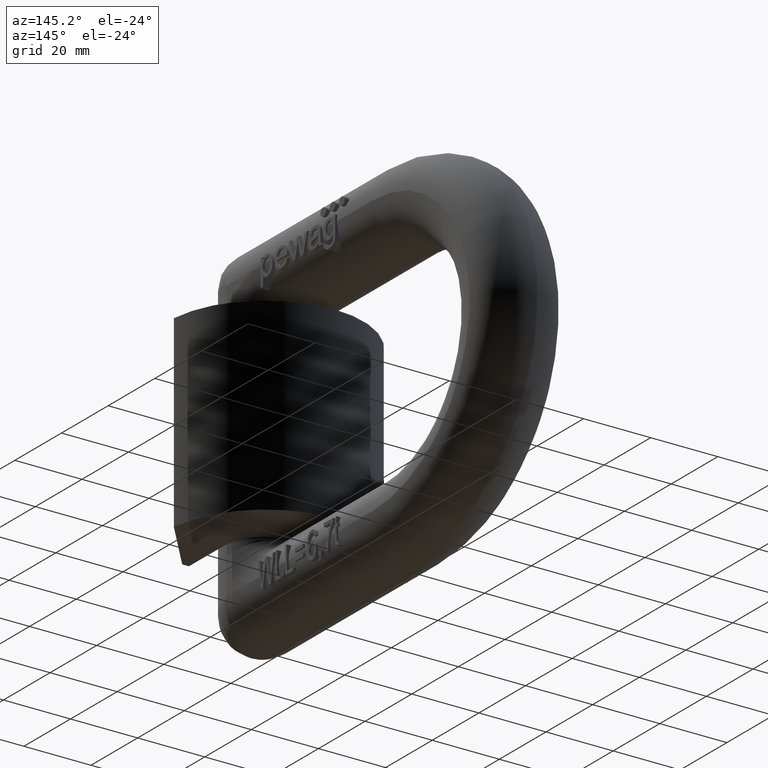
[diagram: clean part render]
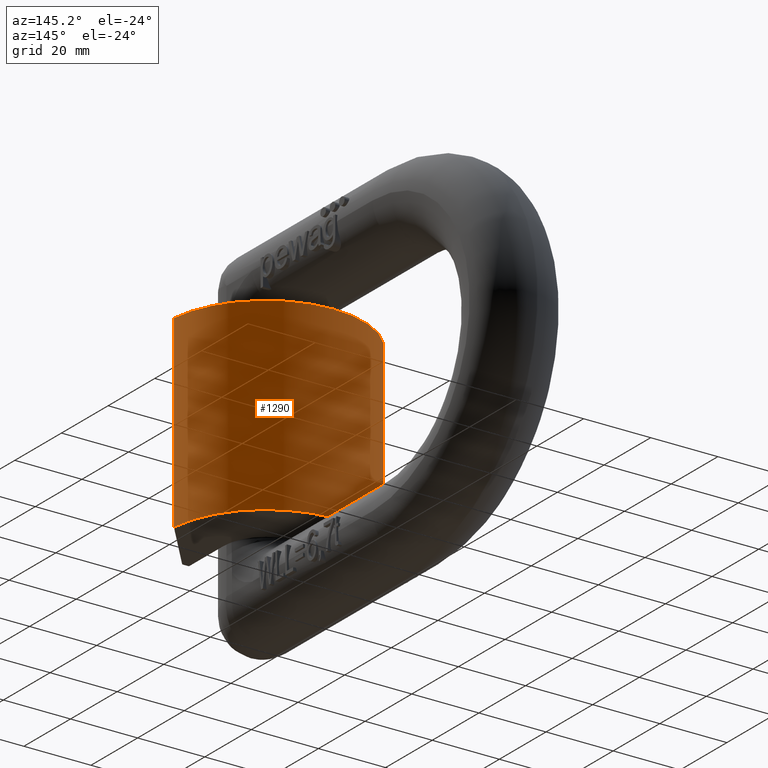
[diagram: same view with one face highlighted and labeled with its STEP entity id]
A machine part, auxiliary view. The second image highlights one B-rep face of the part: STEP entity #1290.
In plain terms, the highlighted cylindrical surface (partial cylindrical patch) has radius 29 mm, axis along (0, 0, -1).
Its self-contained STEP definition (entity closure, byte-faithful):
#1290=ADVANCED_FACE('',(#1808),#1750,.T.);
#1750=CYLINDRICAL_SURFACE('',#8677,29.);
#1808=FACE_OUTER_BOUND('',#2246,.T.);
#2246=EDGE_LOOP('',(#2840,#2841,#2842,#2843));
#2734=CIRCLE('',#8675,29.);
#2735=CIRCLE('',#8676,29.);
#2840=ORIENTED_EDGE('',*,*,#6196,.F.);
#2841=ORIENTED_EDGE('',*,*,#6197,.F.);
#2842=ORIENTED_EDGE('',*,*,#6198,.F.);
#2843=ORIENTED_EDGE('',*,*,#6199,.T.);
#5364=VERTEX_POINT('',#10773);
#5365=VERTEX_POINT('',#10774);
#5366=VERTEX_POINT('',#10776);
#5367=VERTEX_POINT('',#10778);
#6196=EDGE_CURVE('',#5364,#5365,#7458,.T.);
#6197=EDGE_CURVE('',#5366,#5364,#2734,.T.);
#6198=EDGE_CURVE('',#5367,#5366,#7459,.T.);
#6199=EDGE_CURVE('',#5367,#5365,#2735,.T.);
#7458=LINE('',#10772,#7984);
#7459=LINE('',#10777,#7985);
#7984=VECTOR('',#9145,1.);
#7985=VECTOR('',#9148,1.);
#8675=AXIS2_PLACEMENT_3D('',#10775,#9146,#9147);
#8676=AXIS2_PLACEMENT_3D('',#10779,#9149,#9150);
#8677=AXIS2_PLACEMENT_3D('',#10780,#9151,#9152);
#9145=DIRECTION('',(0.,0.,-1.));
#9146=DIRECTION('',(0.,0.,1.));
#9147=DIRECTION('',(1.,0.,0.));
#9148=DIRECTION('',(0.,0.,1.));
#9149=DIRECTION('',(0.,0.,1.));
#9150=DIRECTION('',(1.,0.,0.));
#9151=DIRECTION('',(0.,0.,-1.));
#9152=DIRECTION('',(-1.,0.,0.));
#10772=CARTESIAN_POINT('',(-28.9177633537387,17.1824212739912,28.));
#10773=CARTESIAN_POINT('',(-28.9177633537387,17.1824212739912,28.));
#10774=CARTESIAN_POINT('',(-28.9177633537387,17.1824212739912,-28.));
#10775=CARTESIAN_POINT('',(0.,15.,28.));
#10776=CARTESIAN_POINT('',(28.9177633537387,17.1824212739912,28.));
#10777=CARTESIAN_POINT('',(28.9177633537387,17.1824212739912,28.));
#10778=CARTESIAN_POINT('',(28.9177633537387,17.1824212739912,-28.));
#10779=CARTESIAN_POINT('',(0.,15.,-28.));
#10780=CARTESIAN_POINT('',(0.,15.,28.));